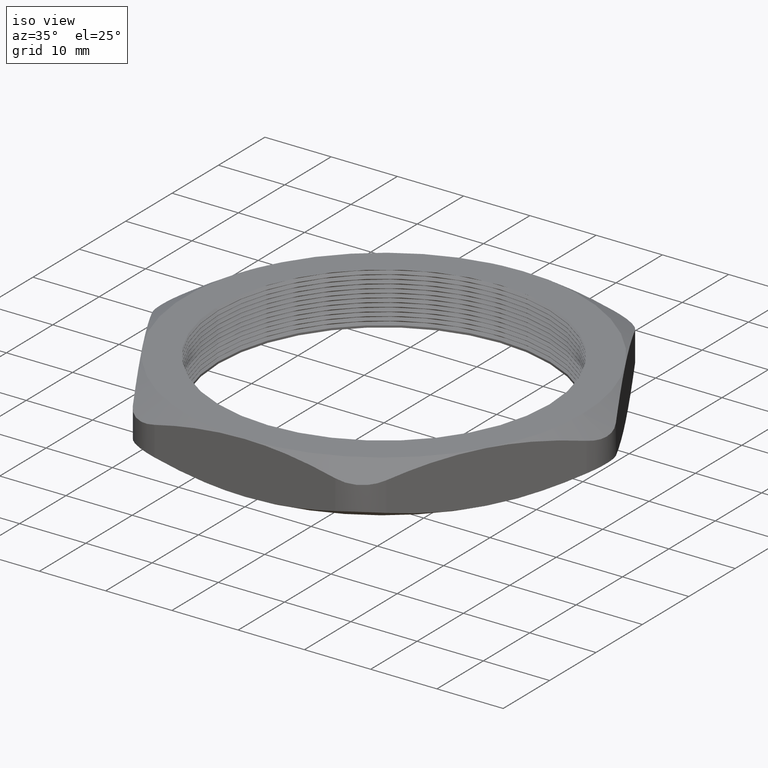
[diagram: clean part render]
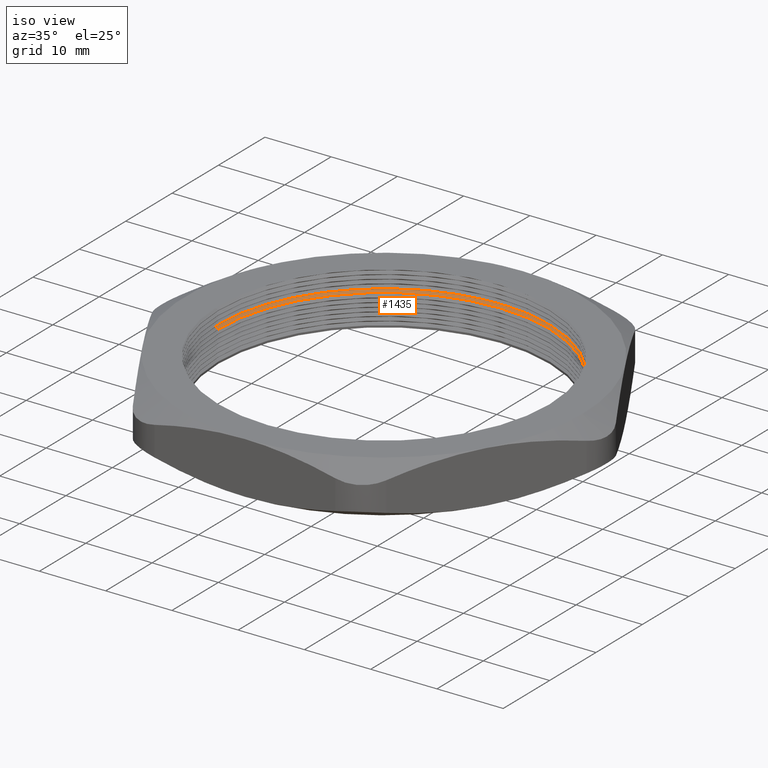
[diagram: same view with one face highlighted and labeled with its STEP entity id]
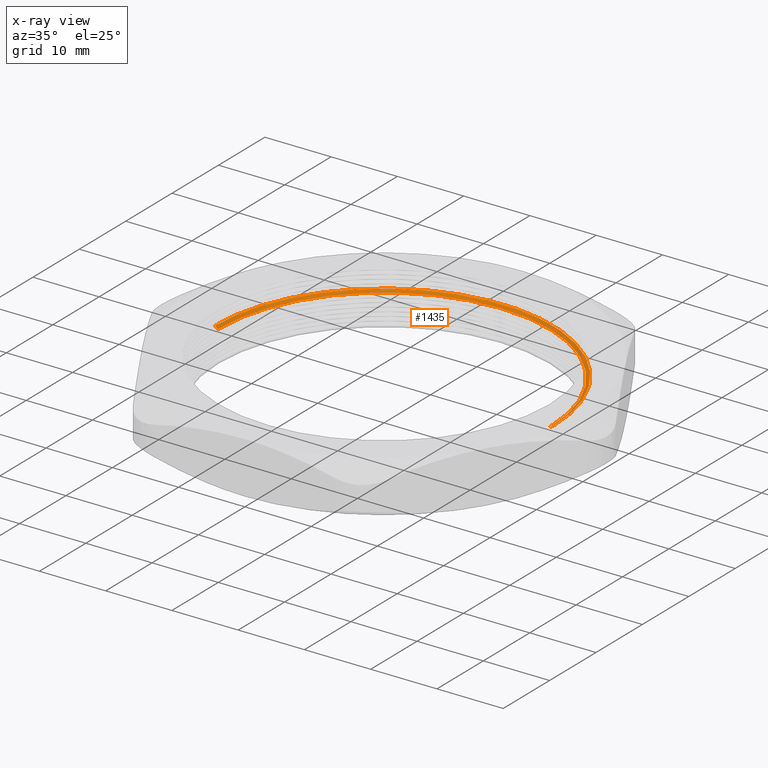
[diagram: x-ray of the same camera — body ghosted, the highlighted face saturated]
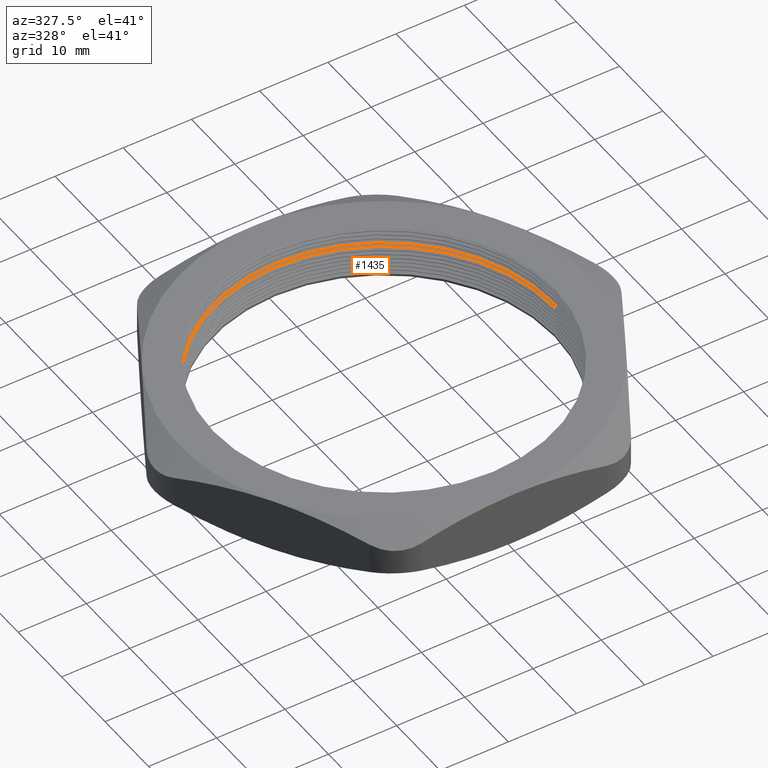
[diagram: same view with one face highlighted and labeled with its STEP entity id]
A machine part, iso view. The second image highlights one B-rep face of the part: STEP entity #1435.
The next image is the same camera in x-ray: the body ghosted, the highlighted face saturated — about 0% of this face is hidden behind the body in this view.
A second angle (auxiliary view) of the same face is appended — the face is thin or edge-on in the first view.
In plain terms, the highlighted conical surface has half-angle 60 deg.
Its self-contained STEP definition (entity closure, byte-faithful):
#133 = CARTESIAN_POINT ( 'NONE',  ( -1.005000000000000100, 0.0000000000000000000, 0.1984529946162076900 ) ) ;
#134 = DIRECTION ( 'NONE',  ( -0.8660254037844353800, 1.060575238724902800E-016, 0.5000000000000056600 ) ) ;
#135 = VECTOR ( 'NONE', #134, 39.37007874015748100 ) ;
#136 = CARTESIAN_POINT ( 'NONE',  ( -0.9849999999999999900, 1.206277097160143100E-016, 0.1869059892324149700 ) ) ;
#137 = LINE ( 'NONE', #136, #135 ) ;
#138 = CARTESIAN_POINT ( 'NONE',  ( 0.9849999999999999900, 1.206277097160143100E-016, 0.1869059892324149700 ) ) ;
#139 = CARTESIAN_POINT ( 'NONE',  ( -0.9849999999999999900, 0.0000000000000000000, 0.1869059892324149700 ) ) ;
#240 = DIRECTION ( 'NONE',  ( 0.8660254037844353800, 0.0000000000000000000, 0.5000000000000056600 ) ) ;
#241 = VECTOR ( 'NONE', #240, 39.37007874015748100 ) ;
#242 = CARTESIAN_POINT ( 'NONE',  ( 0.9849999999999999900, 0.0000000000000000000, 0.1869059892324149700 ) ) ;
#243 = LINE ( 'NONE', #242, #241 ) ;
#306 = CARTESIAN_POINT ( 'NONE',  ( 1.005000000000000100, 1.230770033143090100E-016, 0.1984529946162076900 ) ) ;
#1128 = EDGE_CURVE ( 'NONE', #1652, #1651, #2115, .T. ) ;
#1435 = ADVANCED_FACE ( 'NONE', ( #2733 ), #2732, .F. ) ;
#1491 = ORIENTED_EDGE ( 'NONE', *, *, #1692, .T. ) ;
#1494 = ORIENTED_EDGE ( 'NONE', *, *, #1497, .T. ) ;
#1497 = EDGE_CURVE ( 'NONE', #1729, #1656, #2771, .T. ) ;
#1498 = EDGE_LOOP ( 'NONE', ( #1522, #1523, #1491, #1494 ) ) ;
#1522 = ORIENTED_EDGE ( 'NONE', *, *, #1655, .F. ) ;
#1523 = ORIENTED_EDGE ( 'NONE', *, *, #1128, .F. ) ;
#1651 = VERTEX_POINT ( 'NONE', #139 ) ;
#1652 = VERTEX_POINT ( 'NONE', #138 ) ;
#1655 = EDGE_CURVE ( 'NONE', #1651, #1656, #137, .T. ) ;
#1656 = VERTEX_POINT ( 'NONE', #133 ) ;
#1692 = EDGE_CURVE ( 'NONE', #1652, #1729, #243, .T. ) ;
#1729 = VERTEX_POINT ( 'NONE', #306 ) ;
#2112 = DIRECTION ( 'NONE',  ( 1.000000000000000000, 0.0000000000000000000, 0.0000000000000000000 ) ) ;
#2113 = DIRECTION ( 'NONE',  ( 0.0000000000000000000, 0.0000000000000000000, 1.000000000000000000 ) ) ;
#2114 = AXIS2_PLACEMENT_3D ( 'NONE', #2122, #2113, #2112 ) ;
#2115 = CIRCLE ( 'NONE', #2114, 0.9849999999999999900 ) ;
#2122 = CARTESIAN_POINT ( 'NONE',  ( 0.0000000000000000000, 0.0000000000000000000, 0.1869059892324149700 ) ) ;
#2675 = CARTESIAN_POINT ( 'NONE',  ( 0.0000000000000000000, 0.0000000000000000000, 0.1869059892324149700 ) ) ;
#2728 = DIRECTION ( 'NONE',  ( 1.000000000000000000, 0.0000000000000000000, 0.0000000000000000000 ) ) ;
#2729 = DIRECTION ( 'NONE',  ( 0.0000000000000000000, 0.0000000000000000000, 1.000000000000000000 ) ) ;
#2730 = AXIS2_PLACEMENT_3D ( 'NONE', #2675, #2729, #2728 ) ;
#2732 = CONICAL_SURFACE ( 'NONE', #2730, 0.9849999999999999900, 1.047197551196591200 ) ;
#2733 = FACE_OUTER_BOUND ( 'NONE', #1498, .T. ) ;
#2771 = CIRCLE ( 'NONE', #2833, 1.005000000000000100 ) ;
#2776 = CARTESIAN_POINT ( 'NONE',  ( 0.0000000000000000000, 0.0000000000000000000, 0.1984529946162076900 ) ) ;
#2831 = DIRECTION ( 'NONE',  ( 1.000000000000000000, 0.0000000000000000000, 0.0000000000000000000 ) ) ;
#2832 = DIRECTION ( 'NONE',  ( 0.0000000000000000000, 0.0000000000000000000, 1.000000000000000000 ) ) ;
#2833 = AXIS2_PLACEMENT_3D ( 'NONE', #2776, #2832, #2831 ) ;